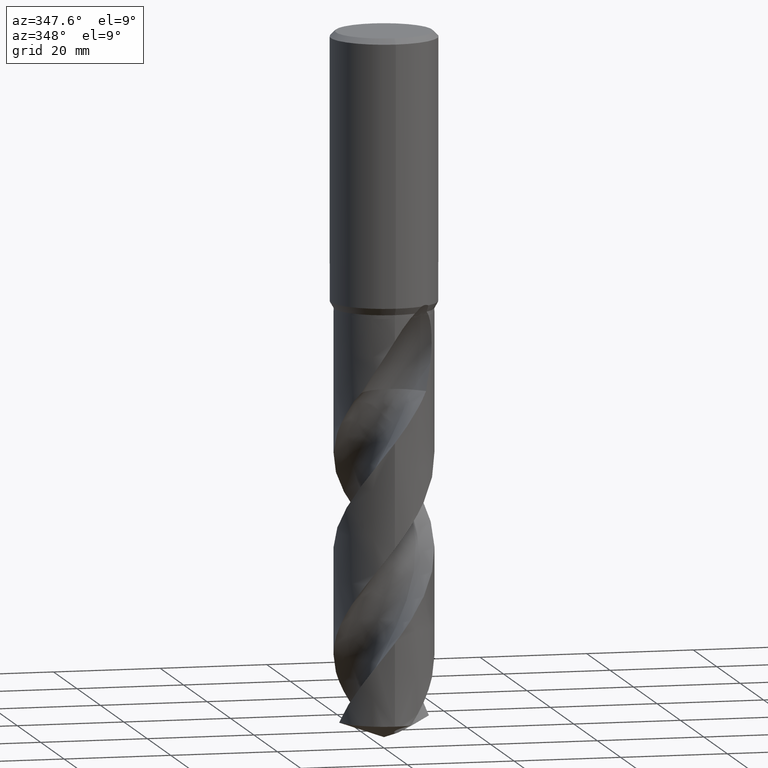
[diagram: clean part render]
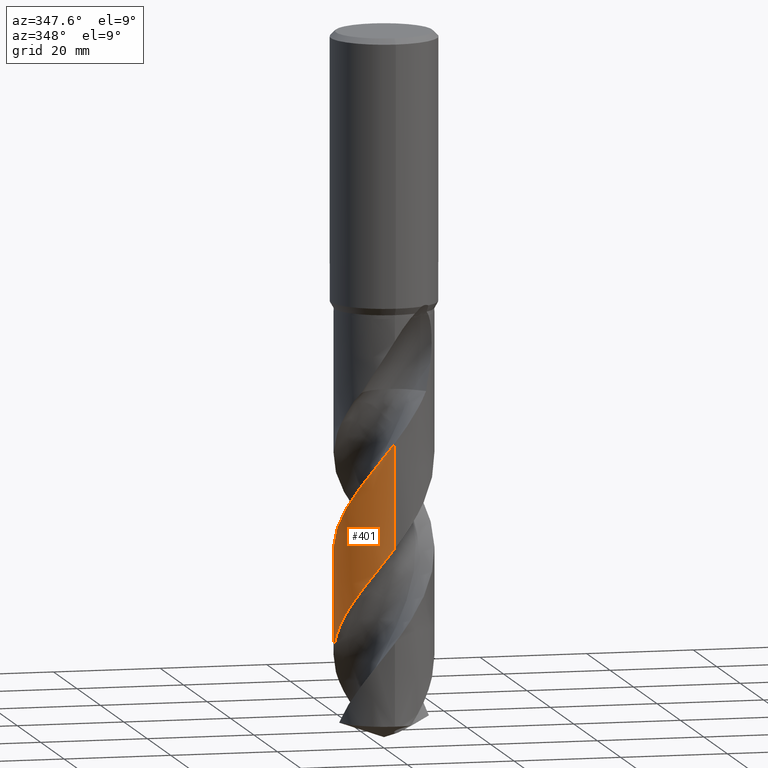
[diagram: same view with one face highlighted and labeled with its STEP entity id]
A machine part, auxiliary view. The second image highlights one B-rep face of the part: STEP entity #401.
In plain terms, the highlighted conical surface has half-angle 0 deg.
Its self-contained STEP definition (entity closure, byte-faithful):
#385=EDGE_CURVE('',#619,#459,#927,.T.);
#401=ADVANCED_FACE('',(#943),#944,.T.);
#421=EDGE_CURVE('',#683,#533,#967,.T.);
#459=VERTEX_POINT('',#1006);
#475=EDGE_CURVE('',#627,#683,#1023,.T.);
#505=EDGE_CURVE('',#459,#627,#1056,.T.);
#533=VERTEX_POINT('',#1087);
#619=VERTEX_POINT('',#1181);
#627=VERTEX_POINT('',#1189);
#683=VERTEX_POINT('',#1250);
#695=EDGE_CURVE('',#619,#533,#1263,.T.);
#927=B_SPLINE_CURVE_WITH_KNOTS('',3,(#2603,#2604,#2605,#2606,#2607,#2608,#2609,#2610,#2611,#2612,#2613,#2614,#2615,#2616,#2617,#2618,#2619,#2620,#2621,#2622,#2623,#2624,#2625,#2626,#2627,#2628,#2629,#2630,#2631,#2632,#2633,#2634,#2635,#2636,#2637,#2638,#2639,#2640,#2641,#2642,#2643,#2644,#2645,#2646,#2647,#2648,#2649,#2650,#2651,#2652,#2653,#2654,#2655,#2656,#2657,#2658,#2659,#2660,#2661,#2662,#2663,#2664,#2665,#2666,#2667,#2668,#2669,#2670,#2671,#2672,#2673,#2674,#2675,#2676,#2677,#2678,#2679,#2680),.UNSPECIFIED.,.F.,.F.,(4,2,2,2,2,2,2,2,2,2,2,2,2,2,2,2,2,2,2,2,2,2,2,2,2,2,2,2,2,2,2,2,2,2,2,2,2,2,4),(0.0,2.11832064369495,4.96934726004679,6.57239254539793,10.9103757546505,11.9839473236202,15.4495230343633,17.1691840414953,20.5602802217997,22.242153392903,25.5373369955043,28.4155422980956,31.3569547099383,32.8312011344086,35.0031842542517,36.1859869987135,37.940298998313,40.764040597524,41.5524978981459,43.018135130074,47.4764454485099,47.5502072691558,52.2965010399195,53.2663390168955,57.2549886999309,58.7258049802634,62.9651554773789,63.3184772108414,67.1362388751207,69.8890892646162,71.8133557162368,72.5834480972218,74.06362306608,75.0365916373262,76.6103681265286,77.4983715231839,78.5813453826851,80.6867075451889,83.9248104108916),.UNSPECIFIED.);
#943=FACE_OUTER_BOUND('',#2728,.T.);
#944=CONICAL_SURFACE('',#2729,9.24995,1.32216937002102E-006);
#967=LINE('',#3040,#3041);
#1006=CARTESIAN_POINT('',(-2.84693358548537E-012,-9.24995635927932,-94.6263689090587));
#1023=B_SPLINE_CURVE_WITH_KNOTS('',3,(#3361,#3362,#3363,#3364,#3365,#3366,#3367,#3368,#3369,#3370,#3371,#3372,#3373,#3374,#3375,#3376,#3377,#3378,#3379,#3380,#3381,#3382,#3383,#3384,#3385,#3386,#3387,#3388,#3389,#3390,#3391,#3392,#3393,#3394,#3395,#3396,#3397,#3398,#3399,#3400,#3401,#3402,#3403,#3404,#3405,#3406,#3407,#3408,#3409,#3410,#3411,#3412,#3413,#3414,#3415,#3416,#3417,#3418,#3419,#3420,#3421,#3422,#3423,#3424,#3425,#3426,#3427,#3428,#3429,#3430,#3431,#3432,#3433,#3434,#3435,#3436,#3437,#3438,#3439,#3440,#3441,#3442,#3443,#3444,#3445,#3446,#3447,#3448,#3449,#3450,#3451,#3452,#3453,#3454),.UNSPECIFIED.,.F.,.F.,(4,2,2,2,2,2,2,2,2,2,2,2,2,2,2,2,2,2,2,2,2,2,2,2,2,2,2,2,2,2,2,2,2,2,2,2,2,2,2,2,2,2,2,2,2,2,4),(0.0,0.273024571154793,0.331031660485378,1.48260282648937,1.86092443431691,2.09703163324914,2.3147405109089,3.07610170071099,3.53249077285026,3.6732403228359,3.78990074541895,3.89434734868923,4.59233437014372,5.53156842979906,6.69462444418405,8.46832704598842,10.7717952926914,13.7453497324183,16.0434360334941,18.3325340668147,19.4834944879428,20.6198522190077,25.1418861533873,25.2796989694147,29.2283947835292,31.5073923951264,33.7992006469895,36.0945950058536,38.3795759335511,39.5304613585937,41.7973758015416,44.0921437055886,46.3794729188145,48.6678997445796,49.8177880744674,50.9505191550317,53.2314952368247,54.3827982190437,56.6599018182508,58.9513787169112,61.1151517383221,64.8793818204648,66.2984016296329,68.7964972361106,72.5552377199696,74.4348746528524,76.3167734187331),.UNSPECIFIED.);
#1056=LINE('',#3585,#3586);
#1087=CARTESIAN_POINT('',(-1.13266026383893E-015,9.25,-127.633275333038));
#1181=CARTESIAN_POINT('',(-3.12799866923198,8.70506314309569,-127.633275333038));
#1189=CARTESIAN_POINT('',(5.42355262508113E-013,-9.24993051922819,-75.0826918813478));
#1250=CARTESIAN_POINT('',(-2.54353246310814E-014,9.2499795454019,-112.162792851247));
#1263=CIRCLE('',#5173,9.25);
#2603=CARTESIAN_POINT('',(-3.1279986692319,8.70506314309565,-127.633275333038));
#2604=CARTESIAN_POINT('',(-3.53745953615686,8.55793039663559,-127.077145239356));
#2605=CARTESIAN_POINT('',(-3.93654870129052,8.38190353083459,-126.520403097864));
#2606=CARTESIAN_POINT('',(-4.84119687932471,7.90378869695069,-125.216837063305));
#2607=CARTESIAN_POINT('',(-5.33272222490781,7.58079748180134,-124.473765343059));
#2608=CARTESIAN_POINT('',(-6.04729317725863,7.00723854623595,-123.304959914513));
#2609=CARTESIAN_POINT('',(-6.29281267306973,6.7875513222578,-122.882752931699));
#2610=CARTESIAN_POINT('',(-7.15584772972052,5.92847153172449,-121.324386960807));
#2611=CARTESIAN_POINT('',(-7.69205428806458,5.21389159650722,-120.204004260946));
#2612=CARTESIAN_POINT('',(-8.22354419471478,4.24075377684848,-118.78542717524));
#2613=CARTESIAN_POINT('',(-8.32207311019526,4.04400564946062,-118.503453845021));
#2614=CARTESIAN_POINT('',(-8.70939177859303,3.19612890798962,-117.312391661815));
#2615=CARTESIAN_POINT('',(-8.92945228916806,2.51676234557088,-116.41203231942));
#2616=CARTESIAN_POINT('',(-9.13890729141962,1.47220890242638,-115.052480185968));
#2617=CARTESIAN_POINT('',(-9.18838968816043,1.12255821494303,-114.599939896477));
#2618=CARTESIAN_POINT('',(-9.27577954377482,0.0777300120477712,-113.260000155771));
#2619=CARTESIAN_POINT('',(-9.25539891904777,-0.620033694760831,-112.379414675534));
#2620=CARTESIAN_POINT('',(-9.10797942357408,-1.65107219750297,-111.050617313424));
#2621=CARTESIAN_POINT('',(-9.04007640548127,-1.98943035464541,-110.608520544016));
#2622=CARTESIAN_POINT('',(-8.7840023857153,-2.97642644653744,-109.305018891731));
#2623=CARTESIAN_POINT('',(-8.54335829516396,-3.60971435875761,-108.449803117943));
#2624=CARTESIAN_POINT('',(-7.96672760625681,-4.73728660594013,-106.835019459734));
#2625=CARTESIAN_POINT('',(-7.64833869534801,-5.23580886763554,-106.078987301672));
#2626=CARTESIAN_POINT('',(-6.91235313489781,-6.17621278950403,-104.556838179238));
#2627=CARTESIAN_POINT('',(-6.49502337100715,-6.61359442951374,-103.79266824569));
#2628=CARTESIAN_POINT('',(-5.80983898299465,-7.20408618774192,-102.636737685336));
#2629=CARTESIAN_POINT('',(-5.57174080557503,-7.3897840055982,-102.249673120297));
#2630=CARTESIAN_POINT('',(-4.96056842699328,-7.82002823424373,-101.294926760287));
#2631=CARTESIAN_POINT('',(-4.57814562035267,-8.04993336488706,-100.728594504873));
#2632=CARTESIAN_POINT('',(-3.96348895851426,-8.36131519696164,-99.8513473270922));
#2633=CARTESIAN_POINT('',(-3.74269791522761,-8.46243849734756,-99.5422924428993));
#2634=CARTESIAN_POINT('',(-3.18562682951701,-8.69154842419045,-98.7735614982563));
#2635=CARTESIAN_POINT('',(-2.84562136311103,-8.80870899432204,-98.3127172197241));
#2636=CARTESIAN_POINT('',(-1.94275080745098,-9.06212064044776,-97.114536680007));
#2637=CARTESIAN_POINT('',(-1.37205111158418,-9.165959651376,-96.3804958185986));
#2638=CARTESIAN_POINT('',(-0.633719407421824,-9.2296412726877,-95.4362858003085));
#2639=CARTESIAN_POINT('',(-0.472337778673694,-9.23930165625108,-95.2302104969857));
#2640=CARTESIAN_POINT('',(-0.0108172763993797,-9.25482194700603,-94.6404806621443));
#2641=CARTESIAN_POINT('',(0.289205235698299,-9.25029923070105,-94.2558254426299));
#2642=CARTESIAN_POINT('',(1.49926127923151,-9.17314375783697,-92.7060814523189));
#2643=CARTESIAN_POINT('',(2.39519215957224,-8.98074731263161,-91.5582682469125));
#2644=CARTESIAN_POINT('',(3.26190036577164,-8.65573922626191,-90.3719667438447));
#2645=CARTESIAN_POINT('',(3.27599336717857,-8.6504152357155,-90.3526566852634));
#2646=CARTESIAN_POINT('',(4.19853429826734,-8.29931485626323,-89.0877608209516));
#2647=CARTESIAN_POINT('',(5.04672909783742,-7.81266141193304,-87.8647752426018));
#2648=CARTESIAN_POINT('',(5.95863687244381,-7.07782594342401,-86.3669138430269));
#2649=CARTESIAN_POINT('',(6.10916623674064,-6.9483160954508,-86.1122945272768));
#2650=CARTESIAN_POINT('',(6.85791431892473,-6.26090954032993,-84.8125211643462));
#2651=CARTESIAN_POINT('',(7.38412435071655,-5.63068043296798,-83.7805083219283));
#2652=CARTESIAN_POINT('',(7.98169353043635,-4.68453321122686,-82.3503088344278));
#2653=CARTESIAN_POINT('',(8.12999590698457,-4.42216271899322,-81.9638179791354));
#2654=CARTESIAN_POINT('',(8.65568973390847,-3.37582063629682,-80.4676890280859));
#2655=CARTESIAN_POINT('',(8.93417822548844,-2.54858905393243,-79.3732802734154));
#2656=CARTESIAN_POINT('',(9.10652458149998,-1.62411029489705,-78.1696942470154));
#2657=CARTESIAN_POINT('',(9.11894907979472,-1.55283782175169,-78.0770348489608));
#2658=CARTESIAN_POINT('',(9.25592795988101,-0.70851776154383,-76.9825034114947));
#2659=CARTESIAN_POINT('',(9.2828053342361,0.0778244342408942,-75.9889882184543));
#2660=CARTESIAN_POINT('',(9.15745605635406,1.42200754076952,-74.2677275467983));
#2661=CARTESIAN_POINT('',(9.05345401154382,1.97858701056434,-73.5449031652933));
#2662=CARTESIAN_POINT('',(8.79198688576186,2.901347041134,-72.3189011354763));
#2663=CARTESIAN_POINT('',(8.65923992725852,3.27720304992883,-71.8077812496739));
#2664=CARTESIAN_POINT('',(8.43751497408387,3.79411412784235,-71.1016476041471));
#2665=CARTESIAN_POINT('',(8.37069682781221,3.93934255822742,-70.902928278703));
#2666=CARTESIAN_POINT('',(8.16319268828644,4.36107404638734,-70.3149244715751));
#2667=CARTESIAN_POINT('',(8.01234982099526,4.63199743925844,-69.9292574747147));
#2668=CARTESIAN_POINT('',(7.74653373194775,5.05886015550128,-69.2679299217495));
#2669=CARTESIAN_POINT('',(7.64328979020503,5.21242286349587,-69.0119375259956));
#2670=CARTESIAN_POINT('',(7.38924929478671,5.57079292716471,-68.4035727277284));
#2671=CARTESIAN_POINT('',(7.25901510389221,5.73418947210147,-68.1115148821189));
#2672=CARTESIAN_POINT('',(7.14593467352772,5.87374272577206,-67.8674059458536));
#2673=CARTESIAN_POINT('',(7.10381777446282,5.92463949670812,-67.7804072791933));
#2674=CARTESIAN_POINT('',(7.00715192793726,6.03884192639402,-67.5893984911152));
#2675=CARTESIAN_POINT('',(6.95201463477375,6.10228746431203,-67.4860668031236));
#2676=CARTESIAN_POINT('',(6.78328576273456,6.2909449898188,-67.1861135947697));
#2677=CARTESIAN_POINT('',(6.66421451147852,6.41729769658832,-66.9945204447361));
#2678=CARTESIAN_POINT('',(6.34074334999783,6.74038096645958,-66.521784526878));
#2679=CARTESIAN_POINT('',(6.12697219206921,6.93631277910823,-66.2509537172501));
#2680=CARTESIAN_POINT('',(5.89419878237844,7.12877359313484,-65.991));
#2728=EDGE_LOOP('',(#5777,#5778,#5779,#5780,#5781));
#2729=AXIS2_PLACEMENT_3D('',#5782,#5783,#5784);
#3040=CARTESIAN_POINT('',(-1.13265414080717E-015,9.24995,-89.8166376665188));
#3041=VECTOR('',#5832,1.0);
#3361=CARTESIAN_POINT('',(6.42940778141165,-6.65009081206351,-65.991));
#3362=CARTESIAN_POINT('',(6.39076682405634,-6.68744960566676,-66.0644417297748));
#3363=CARTESIAN_POINT('',(6.35173182905451,-6.72453847097323,-66.1378575403425));
#3364=CARTESIAN_POINT('',(6.30384815589836,-6.76924133030041,-66.2267659716144));
#3365=CARTESIAN_POINT('',(6.29543795302964,-6.77706363172523,-66.2423395509808));
#3366=CARTESIAN_POINT('',(6.11963401903102,-6.93996779494814,-66.5669778321781));
#3367=CARTESIAN_POINT('',(5.94780970081741,-7.08807918920117,-66.8664568125518));
#3368=CARTESIAN_POINT('',(5.70123359742516,-7.28443784173375,-67.2694443085441));
#3369=CARTESIAN_POINT('',(5.63945599187048,-7.33237732856655,-67.3684579483643));
#3370=CARTESIAN_POINT('',(5.53746830148222,-7.40944583962178,-67.5291905710655));
#3371=CARTESIAN_POINT('',(5.49797290484782,-7.43880093785801,-67.5907933782817));
#3372=CARTESIAN_POINT('',(5.42141319838781,-7.49475701512814,-67.7091489589977));
#3373=CARTESIAN_POINT('',(5.38444938305916,-7.52135759054086,-67.7658282603872));
#3374=CARTESIAN_POINT('',(5.21711055809,-7.63991047237628,-68.0207122747462));
#3375=CARTESIAN_POINT('',(5.08541143160744,-7.72826693462807,-68.2173171802771));
#3376=CARTESIAN_POINT('',(4.86553807607914,-7.86747139700635,-68.5436633815337));
#3377=CARTESIAN_POINT('',(4.78256006403839,-7.91818023286264,-68.6661721750956));
#3378=CARTESIAN_POINT('',(4.67328675570943,-7.98262780311984,-68.8267941513008));
#3379=CARTESIAN_POINT('',(4.64748094046008,-7.99767930418793,-68.8646750818962));
#3380=CARTESIAN_POINT('',(4.6001974644798,-8.02495230478712,-68.9339950926517));
#3381=CARTESIAN_POINT('',(4.57873547780417,-8.03721696197638,-68.9654263026939));
#3382=CARTESIAN_POINT('',(4.5379975316753,-8.06028125256694,-69.0250274597022));
#3383=CARTESIAN_POINT('',(4.5187385978129,-8.07109380313771,-69.0531796042665));
#3384=CARTESIAN_POINT('',(4.37067228562865,-8.15352841198096,-69.2694011001569));
#3385=CARTESIAN_POINT('',(4.24040084871715,-8.22202256213837,-69.4583464146528));
#3386=CARTESIAN_POINT('',(3.93170418608142,-8.37507377361207,-69.9009524337522));
#3387=CARTESIAN_POINT('',(3.75148993590437,-8.45734757898504,-70.1550922771596));
#3388=CARTESIAN_POINT('',(3.34205931555738,-8.62855876265074,-70.7231142659196));
#3389=CARTESIAN_POINT('',(3.11193480979806,-8.71421452645673,-71.03570075023));
#3390=CARTESIAN_POINT('',(2.52140682119553,-8.90755203324313,-71.826313730326));
#3391=CARTESIAN_POINT('',(2.15825784661558,-9.00241522871786,-72.3037684990265));
#3392=CARTESIAN_POINT('',(1.3132057693136,-9.16915890372144,-73.4026007437975));
#3393=CARTESIAN_POINT('',(0.82928746748418,-9.22550106753289,-74.0228767550113));
#3394=CARTESIAN_POINT('',(-0.283801753576222,-9.26685613406435,-75.4457552125324));
#3395=CARTESIAN_POINT('',(-0.912064878250316,-9.22627452588167,-76.2441708031524));
#3396=CARTESIAN_POINT('',(-2.01056427919018,-9.0418302041288,-77.6645681237576));
#3397=CARTESIAN_POINT('',(-2.48212282100772,-8.9238834558647,-78.2827572856054));
#3398=CARTESIAN_POINT('',(-3.40017096200509,-8.61589577558667,-79.519505900805));
#3399=CARTESIAN_POINT('',(-3.84572511591736,-8.42648132935819,-80.135967923052));
#3400=CARTESIAN_POINT('',(-4.49019982223628,-8.09064805950518,-81.0630493973177));
#3401=CARTESIAN_POINT('',(-4.70134915099797,-7.96980844728941,-81.3730151519972));
#3402=CARTESIAN_POINT('',(-5.11108851799182,-7.71335387883307,-81.9892975720711));
#3403=CARTESIAN_POINT('',(-5.30954707264867,-7.57810772823833,-82.2951934731249));
#3404=CARTESIAN_POINT('',(-6.27029647462281,-6.86710986662866,-83.8203981303707));
#3405=CARTESIAN_POINT('',(-6.94574728454906,-6.18314758844271,-85.0331474967474));
#3406=CARTESIAN_POINT('',(-7.52147966380323,-5.38420658963367,-86.2889953676379));
#3407=CARTESIAN_POINT('',(-7.5383934059462,-5.36050022720438,-86.3261332475674));
#3408=CARTESIAN_POINT('',(-8.03664490127193,-4.65512692084628,-87.4276500174896));
#3409=CARTESIAN_POINT('',(-8.42378851699073,-3.91128231762552,-88.4896491231463));
#3410=CARTESIAN_POINT('',(-8.86865420903824,-2.67220194145656,-90.1684884939425));
#3411=CARTESIAN_POINT('',(-8.99571132606757,-2.20692532108376,-90.7817422027468));
#3412=CARTESIAN_POINT('',(-9.17671256296242,-1.25854319937216,-92.0145812351173));
#3413=CARTESIAN_POINT('',(-9.23002902628787,-0.776462285282189,-92.6318904367884));
#3414=CARTESIAN_POINT('',(-9.26066746673416,0.192698862293298,-93.8686450224659));
#3415=CARTESIAN_POINT('',(-9.23781553455158,0.677957204400674,-94.4858564581443));
#3416=CARTESIAN_POINT('',(-9.11655893545845,1.63802205673515,-95.7212738906112));
#3417=CARTESIAN_POINT('',(-9.01865236440161,2.11160999359978,-96.3370387912603));
#3418=CARTESIAN_POINT('',(-8.8164519832906,2.80911104790455,-97.2635559984206));
#3419=CARTESIAN_POINT('',(-8.7395215943653,3.04002299565958,-97.5737037920691));
#3420=CARTESIAN_POINT('',(-8.48424049034262,3.71607085115701,-98.4951549652311));
#3421=CARTESIAN_POINT('',(-8.28039652503751,4.15044296881576,-99.1055633405911));
#3422=CARTESIAN_POINT('',(-7.80461092915903,4.98847594195842,-100.336074454677));
#3423=CARTESIAN_POINT('',(-7.53240267052628,5.39074492618231,-100.954105384355));
#3424=CARTESIAN_POINT('',(-6.92812773102199,6.1479080765673,-102.189547442201));
#3425=CARTESIAN_POINT('',(-6.59742200919863,6.50149555436925,-102.804873558285));
#3426=CARTESIAN_POINT('',(-5.8838671492694,7.15372513813675,-104.03921954402));
#3427=CARTESIAN_POINT('',(-5.50186659817137,7.45153926816099,-104.655837930788));
#3428=CARTESIAN_POINT('',(-4.89537694214336,7.85215485976413,-105.583041037769));
#3429=CARTESIAN_POINT('',(-4.68731914470896,7.97810301648814,-105.892924618384));
#3430=CARTESIAN_POINT('',(-4.26488324613361,8.21158470549876,-106.50837497959));
#3431=CARTESIAN_POINT('',(-4.05090816198395,8.31922092708054,-106.813582890695));
#3432=CARTESIAN_POINT('',(-3.39434298169794,8.61816750408486,-107.734438696893));
#3433=CARTESIAN_POINT('',(-2.94062555724905,8.78334959218754,-108.34936717241));
#3434=CARTESIAN_POINT('',(-2.24157311067685,8.97756250616905,-109.275157253498));
#3435=CARTESIAN_POINT('',(-2.00456199775105,9.0334414440914,-109.585504424986));
#3436=CARTESIAN_POINT('',(-1.29289337826041,9.17182551804445,-110.510020289331));
#3437=CARTESIAN_POINT('',(-0.813947466872962,9.22665150785057,-111.123005225425));
#3438=CARTESIAN_POINT('',(0.150778093360322,9.26141655062287,-112.355634022602));
#3439=CARTESIAN_POINT('',(0.635456918692249,9.24083965792521,-112.973025442053));
#3440=CARTESIAN_POINT('',(1.57065171535823,9.12713351007832,-114.174569733481));
#3441=CARTESIAN_POINT('',(2.0199766653484,9.03830771088738,-114.756653576847));
#3442=CARTESIAN_POINT('',(3.22768681863563,8.7050081902458,-116.35603698111));
#3443=CARTESIAN_POINT('',(3.9644033949757,8.39521292148605,-117.368022567633));
#3444=CARTESIAN_POINT('',(4.91191182051132,7.84381801974158,-118.765941009367));
#3445=CARTESIAN_POINT('',(5.16371355804937,7.68038463359206,-119.148392065952));
#3446=CARTESIAN_POINT('',(5.83545239381383,7.19642909785054,-120.205339942799));
#3447=CARTESIAN_POINT('',(6.23677429419904,6.85157681024624,-120.878510864077));
#3448=CARTESIAN_POINT('',(7.16294718255855,5.90647824254765,-122.56622365609));
#3449=CARTESIAN_POINT('',(7.64361890247175,5.26956952798252,-123.575752990166));
#3450=CARTESIAN_POINT('',(8.23348989648869,4.23436475847664,-125.097438696598));
#3451=CARTESIAN_POINT('',(8.40777850765308,3.87681946021937,-125.604080482393));
#3452=CARTESIAN_POINT('',(8.70955856408972,3.14077435112324,-126.618736488567));
#3453=CARTESIAN_POINT('',(8.83662116264935,2.76315657496487,-127.125657870131));
#3454=CARTESIAN_POINT('',(8.93896769583763,2.37851981971353,-127.633275333038));
#3585=CARTESIAN_POINT('',(1.13285536770069E-015,-9.24995,-89.8166376665188));
#3586=VECTOR('',#5901,1.0);
#5173=AXIS2_PLACEMENT_3D('',#6133,#6134,#6135);
#5777=ORIENTED_EDGE('',*,*,#421,.T.);
#5778=ORIENTED_EDGE('',*,*,#695,.F.);
#5779=ORIENTED_EDGE('',*,*,#385,.T.);
#5780=ORIENTED_EDGE('',*,*,#505,.T.);
#5781=ORIENTED_EDGE('',*,*,#475,.T.);
#5782=CARTESIAN_POINT('',(0.0,0.0,-89.8166376665188));
#5783=DIRECTION('',(0.0,-0.0,-1.0));
#5784=DIRECTION('',(0.0,1.0,0.0));
#5832=DIRECTION('',(-1.6191370113566E-022,1.32216937002063E-006,-0.999999999999126));
#5901=DIRECTION('',(-1.6191370113566E-022,1.32216937002063E-006,0.999999999999126));
#6133=CARTESIAN_POINT('',(0.0,0.0,-127.633275333038));
#6134=DIRECTION('',(0.0,0.0,-1.0));
#6135=DIRECTION('',(0.0,1.0,0.0));